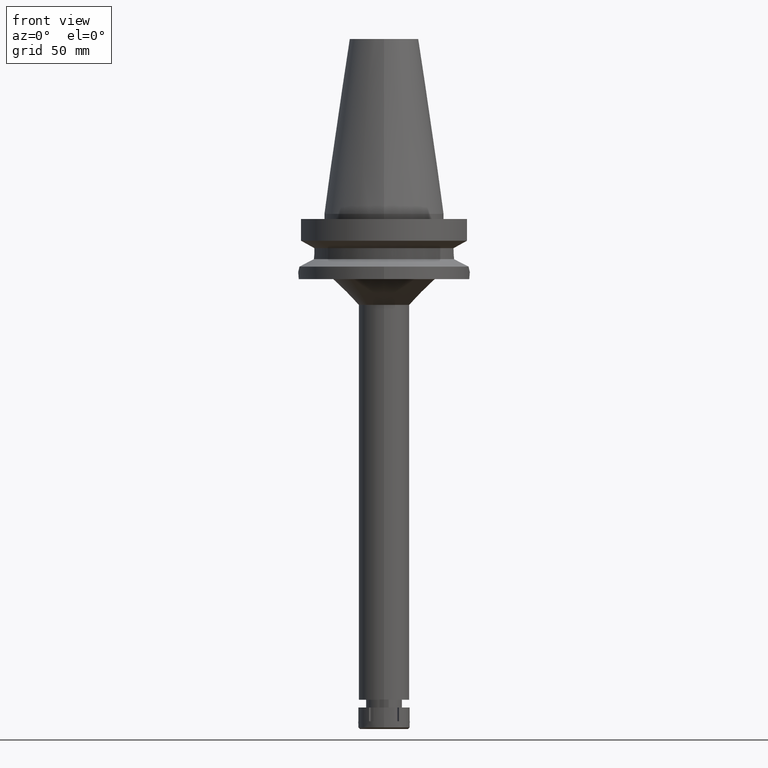
[diagram: clean part render]
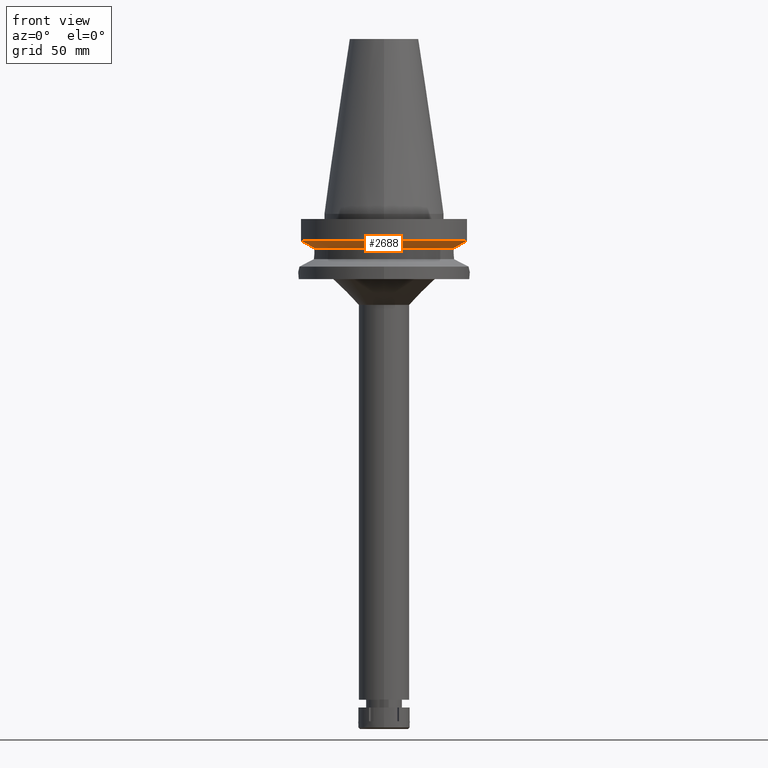
[diagram: same view with one face highlighted and labeled with its STEP entity id]
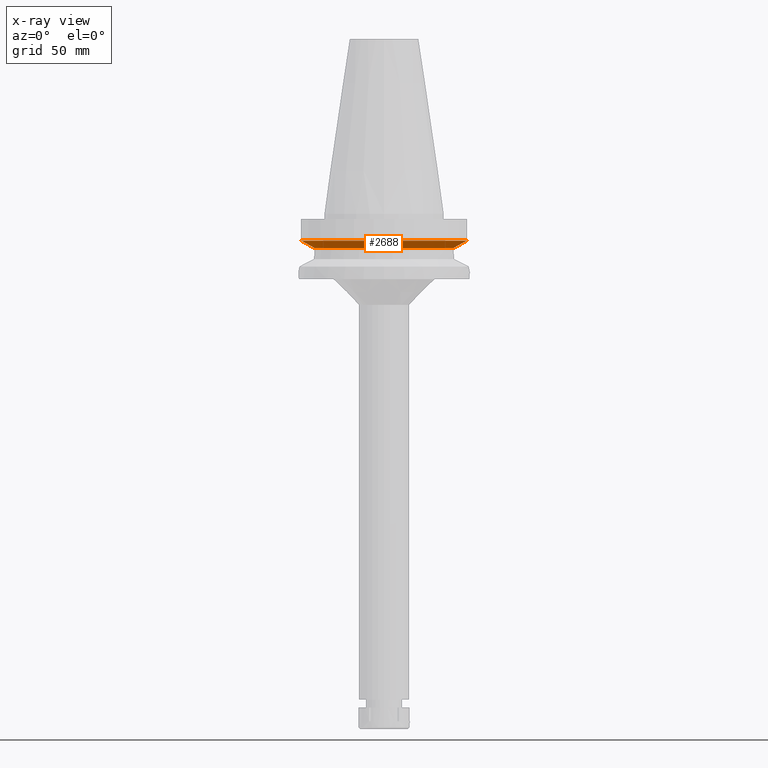
[diagram: x-ray of the same camera — body ghosted, the highlighted face saturated]
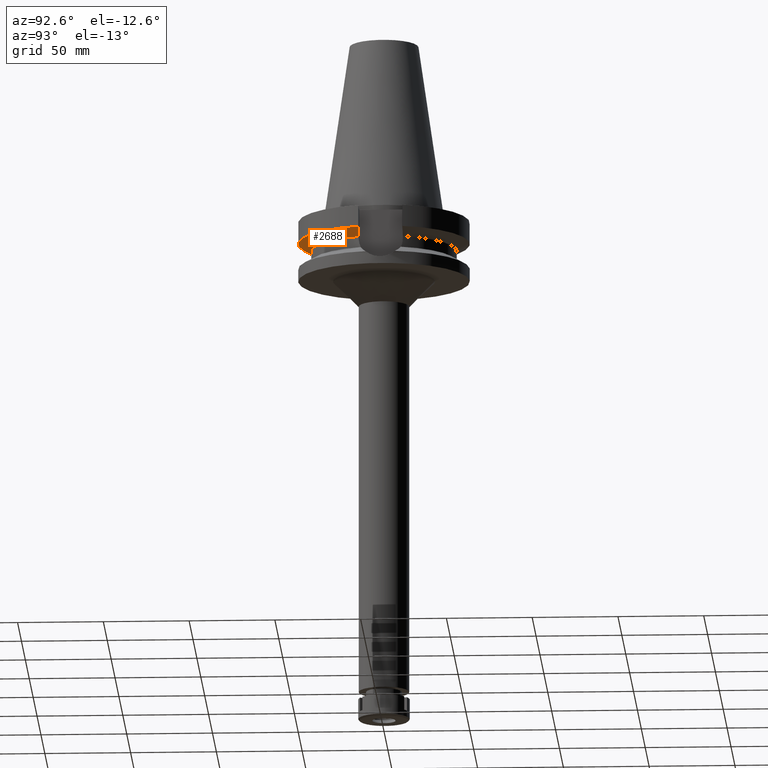
[diagram: same view with one face highlighted and labeled with its STEP entity id]
A machine part, front view. The second image highlights one B-rep face of the part: STEP entity #2688.
The next image is the same camera in x-ray: the body ghosted, the highlighted face saturated — about 0% of this face is hidden behind the body in this view.
A second angle (auxiliary view) of the same face is appended — the face is thin or edge-on in the first view.
In plain terms, the highlighted conical surface has half-angle 60 deg.
Its self-contained STEP definition (entity closure, byte-faithful):
#29 = CIRCLE ( 'NONE', #492, 42.50000000000002132 ) ;
#174 = CARTESIAN_POINT ( 'NONE',  ( 0.0000000000000000000, 1.006319759053999930E-14, -17.82775574519000017 ) ) ;
#258 = B_SPLINE_CURVE_WITH_KNOTS ( 'NONE', 3,
 ( #3431, #2550, #2876, #458 ),
 .UNSPECIFIED., .F., .F.,
 ( 4, 4 ),
 ( 0.0000000000000000000, 1.000000000000000000 ),
 .UNSPECIFIED. ) ;
#350 = CARTESIAN_POINT ( 'NONE',  ( -45.51179901536024630, -12.85000770991706176, -17.22986705878139446 ) ) ;
#407 = AXIS2_PLACEMENT_3D ( 'NONE', #174, #3163, #1738 ) ;
#436 = CARTESIAN_POINT ( 'NONE',  ( 0.0000000000000000000, 1.006319759053999930E-14, -19.99281925464999787 ) ) ;
#458 = CARTESIAN_POINT ( 'NONE',  ( 48.32056912779999891, -12.85000385857999916, -15.66265767091000072 ) ) ;
#492 = AXIS2_PLACEMENT_3D ( 'NONE', #436, #1840, #925 ) ;
#825 = DIRECTION ( 'NONE',  ( 0.0000000000000000000, -1.000000000000000000, 0.0000000000000000000 ) ) ;
#841 = DIRECTION ( 'NONE',  ( 0.0000000000000000000, 0.0000000000000000000, 1.000000000000000000 ) ) ;
#871 = VERTEX_POINT ( 'NONE', #2937 ) ;
#925 = DIRECTION ( 'NONE',  ( 0.9531960443486575674, -0.3023529411764863672, 0.0000000000000000000 ) ) ;
#1063 = CIRCLE ( 'NONE', #1813, 50.00000000000000000 ) ;
#1083 = VERTEX_POINT ( 'NONE', #2228 ) ;
#1085 = CARTESIAN_POINT ( 'NONE',  ( 48.32056912779999891, -12.85000385857999916, -15.66265767091000072 ) ) ;
#1096 = B_SPLINE_CURVE_WITH_KNOTS ( 'NONE', 3,
 ( #2830, #350, #2219, #1666 ),
 .UNSPECIFIED., .F., .F.,
 ( 4, 4 ),
 ( 0.0000000000000000000, 1.000000000000000000 ),
 .UNSPECIFIED. ) ;
#1125 = VERTEX_POINT ( 'NONE', #1085 ) ;
#1321 = ORIENTED_EDGE ( 'NONE', *, *, #1770, .F. ) ;
#1472 = CARTESIAN_POINT ( 'NONE',  ( 40.51083188481999997, -12.84999999999999964, -19.99281925464999787 ) ) ;
#1560 = EDGE_CURVE ( 'NONE', #871, #1125, #1063, .T. ) ;
#1666 = CARTESIAN_POINT ( 'NONE',  ( -40.51083297203000200, -12.84999657244999938, -19.99284555869999735 ) ) ;
#1717 = ORIENTED_EDGE ( 'NONE', *, *, #3450, .T. ) ;
#1738 = DIRECTION ( 'NONE',  ( 0.0000000000000000000, 1.000000000000000000, 0.0000000000000000000 ) ) ;
#1770 = EDGE_CURVE ( 'NONE', #2682, #1083, #29, .T. ) ;
#1813 = AXIS2_PLACEMENT_3D ( 'NONE', #2751, #841, #825 ) ;
#1840 = DIRECTION ( 'NONE',  ( 0.0000000000000000000, 0.0000000000000000000, -1.000000000000000000 ) ) ;
#2037 = FACE_OUTER_BOUND ( 'NONE', #2090, .T. ) ;
#2090 = EDGE_LOOP ( 'NONE', ( #3412, #1321, #1717, #2305 ) ) ;
#2219 = CARTESIAN_POINT ( 'NONE',  ( -42.90862489405132152, -12.84999313793018416, -18.67324780319469113 ) ) ;
#2228 = CARTESIAN_POINT ( 'NONE',  ( -40.51083297203000200, -12.84999657244999938, -19.99284555869999735 ) ) ;
#2305 = ORIENTED_EDGE ( 'NONE', *, *, #1560, .F. ) ;
#2550 = CARTESIAN_POINT ( 'NONE',  ( 42.90863232016216244, -12.84999314232176104, -18.67324368506743326 ) ) ;
#2682 = VERTEX_POINT ( 'NONE', #1472 ) ;
#2688 = ADVANCED_FACE ( 'NONE', ( #2037 ), #3242, .T. ) ;
#2751 = CARTESIAN_POINT ( 'NONE',  ( 0.0000000000000000000, 1.006319759053999930E-14, -15.66269223573000069 ) ) ;
#2783 = EDGE_CURVE ( 'NONE', #871, #1083, #1096, .T. ) ;
#2830 = CARTESIAN_POINT ( 'NONE',  ( -48.32056912814000071, -12.85000385727999905, -15.66265768250999990 ) ) ;
#2876 = CARTESIAN_POINT ( 'NONE',  ( 45.51180301818635598, -12.85000771250647134, -17.22986482497763561 ) ) ;
#2937 = CARTESIAN_POINT ( 'NONE',  ( -48.32056912814000071, -12.85000385727999905, -15.66265768250999990 ) ) ;
#3163 = DIRECTION ( 'NONE',  ( 0.0000000000000000000, 0.0000000000000000000, 1.000000000000000000 ) ) ;
#3242 = CONICAL_SURFACE ( 'NONE', #407, 46.25000000000000000, 1.047197551196400456 ) ;
#3412 = ORIENTED_EDGE ( 'NONE', *, *, #2783, .T. ) ;
#3431 = CARTESIAN_POINT ( 'NONE',  ( 40.51083188481999997, -12.84999999999999964, -19.99281925464999787 ) ) ;
#3450 = EDGE_CURVE ( 'NONE', #2682, #1125, #258, .T. ) ;